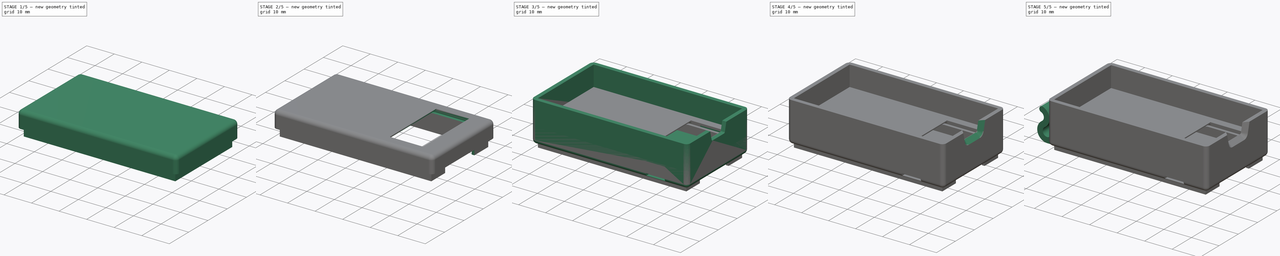
[diagram: build sequence overview — one tinted view per stage of 5, left to right]
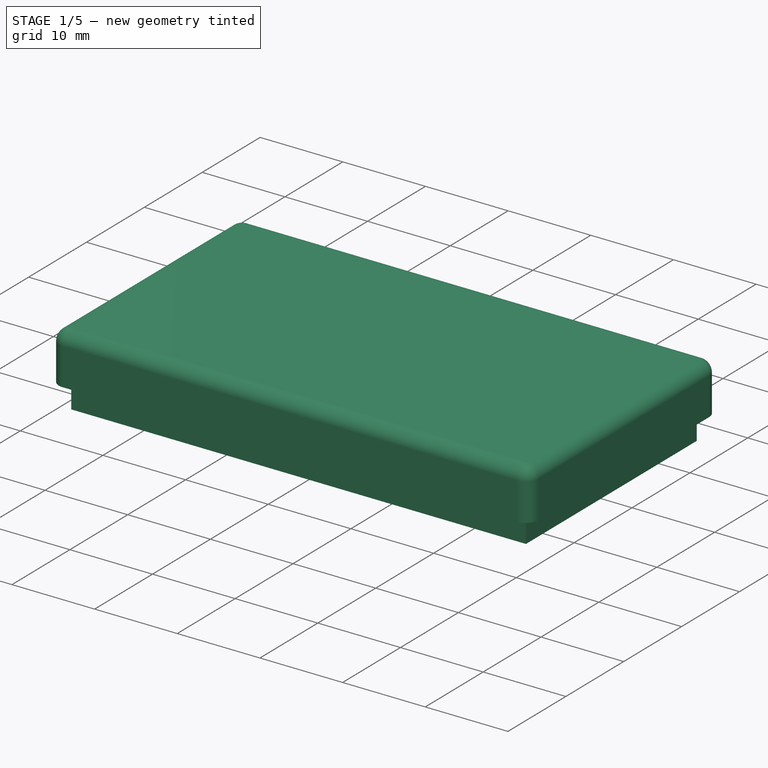
[diagram: stage 1 of 5 — iso view after this stage's code; geometry added in this stage tinted green]
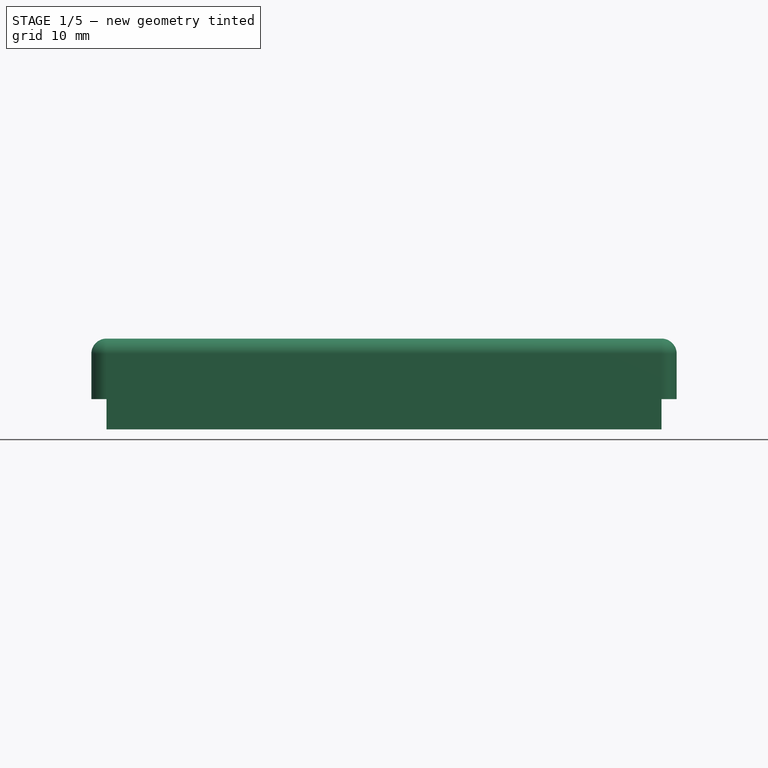
[diagram: stage 1 of 5 — front view after this stage's code; geometry added in this stage tinted green]
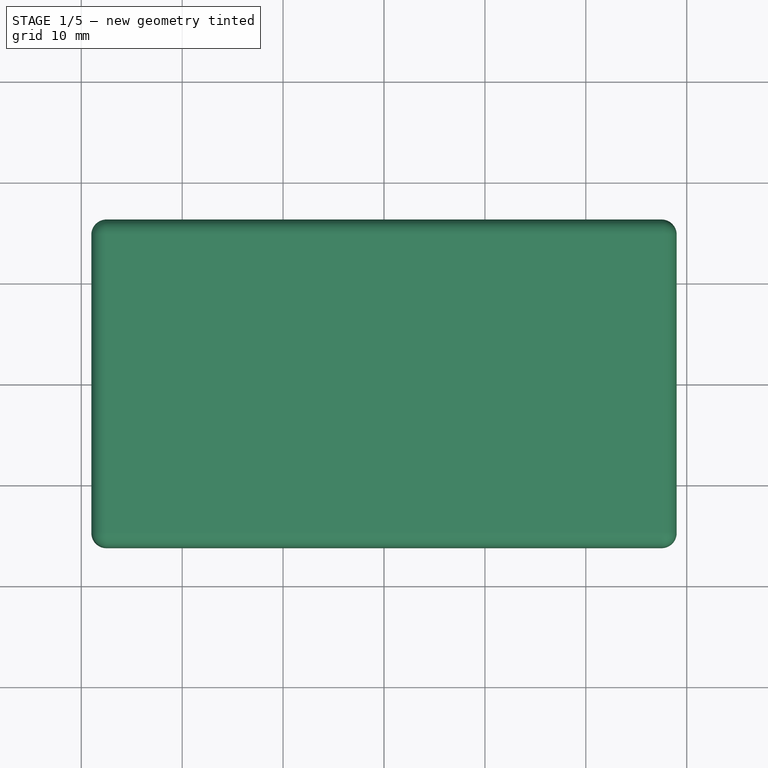
[diagram: stage 1 of 5 — top view after this stage's code; geometry added in this stage tinted green]
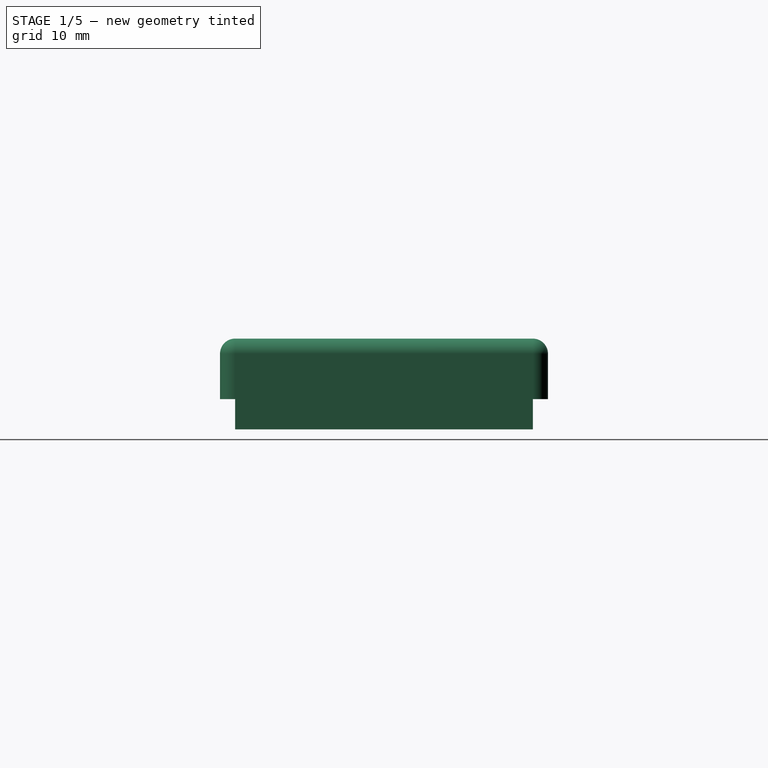
[diagram: stage 1 of 5 — right view after this stage's code; geometry added in this stage tinted green]
FCSTD DOCUMENT  (FreeCAD 0.19R14555 (Git shallow))
Label: wrist-case
License: All rights reserved
LicenseURL: http://en.wikipedia.org/wiki/All_rights_reserved
objects: Sketcher::SketchObject×16, PartDesign::Pocket×11, PartDesign::Pad×5, PartDesign::Chamfer×3, PartDesign::Body×3, PartDesign::Thickness×2, PartDesign::Fillet×2
note: 65 computed .brp shape members not serialized (recipe doc carries the construction recipe); baked Part::Feature solids carry a one-line shape summary decoded from their .brp

FEATURE [Sketcher::SketchObject] Sketch030
  FullyConstrained = true
  MapMode = 5
  Support = -> [XY_Plane003]
  sketch-geometry (4):
    g0: LineSegment StartX=-27.5 StartY=14.75 StartZ=0 EndX=27.5 EndY=14.75 EndZ=0
    g1: LineSegment StartX=27.5 StartY=14.75 StartZ=0 EndX=27.5 EndY=-14.75 EndZ=0
    g2: LineSegment StartX=27.5 StartY=-14.75 StartZ=0 EndX=-27.5 EndY=-14.75 EndZ=0
    g3: LineSegment StartX=-27.5 StartY=-14.75 StartZ=0 EndX=-27.5 EndY=14.75 EndZ=0
  constraints (10):
    c: Coincident(g0,g1)
    c: Coincident(g1,g2)
    c: Coincident(g2,g3)
    c: Coincident(g3,g0)
    c: Horizontal(g2)
    c: Vertical(g3)
    c: Symmetric(g0,g0,g-2)
    c: Symmetric(g0,g1,g-1)
    c: DistanceX(g0,g0) = 55  'width'
    c: DistanceY(g3,g3) = 29.5  'height'
FEATURE [PartDesign::Pad] Pad008  label="BodyPad001"
  AllowMultiFace = false
  Direction = (1,1,1)
  Length = 13.5
  Length2 = 100
  Profile = -> Sketch030
  Type = 0
FEATURE [PartDesign::Thickness] Thickness002
  Base = -> Pad008 [Face6]
  BaseFeature = -> Pad008
  Intersection = false
  Join = 0
  Mode = 0
  SupportTransform = false
  Value = 1.5
FEATURE [Sketcher::SketchObject] Sketch038
  FullyConstrained = true
  MapMode = 5
  Support = -> [XY_Plane004]
  expr: Constraints[8] = Sketch030.Constraints.width
  expr: Constraints[9] = Sketch030.Constraints.height
  sketch-geometry (4):
    g0: LineSegment StartX=-27.5 StartY=14.75 StartZ=0 EndX=27.5 EndY=14.75 EndZ=0
    g1: LineSegment StartX=27.5 StartY=14.75 StartZ=0 EndX=27.5 EndY=-14.75 EndZ=0
    g2: LineSegment StartX=27.5 StartY=-14.75 StartZ=0 EndX=-27.5 EndY=-14.75 EndZ=0
    g3: LineSegment StartX=-27.5 StartY=-14.75 StartZ=0 EndX=-27.5 EndY=14.75 EndZ=0
  constraints (10):
    c: Coincident(g0,g1)
    c: Coincident(g1,g2)
    c: Coincident(g2,g3)
    c: Coincident(g3,g0)
    c: Horizontal(g2)
    c: Vertical(g1)
    c: Symmetric(g0,g0,g-2)
    c: Symmetric(g0,g2,g-1)
    c: DistanceX(g0,g0) = 55
    c: DistanceY(g3,g3) = 29.5
FEATURE [PartDesign::Pad] Pad009
  AllowMultiFace = false
  Direction = (1,1,1)
  Length = 4.5
  Length2 = 10
  Profile = -> Sketch038
  Type = 0
  expr: Length = 6mm - Thickness002.Value
FEATURE [PartDesign::Thickness] Thickness003
  Base = -> Pad009 [Face5]
  BaseFeature = -> Pad009
  Intersection = false
  Join = 0
  Mode = 0
  SupportTransform = false
  Value = 1.5
  expr: Value = Thickness002.Value
FEATURE [Sketcher::SketchObject] Sketch039
  FullyConstrained = true
  MapMode = 5
  Support = -> [XY_Plane004]
  expr: Constraints[24] = Sketch030.Constraints.width
  expr: Constraints[25] = Sketch030.Constraints.height
  sketch-geometry (10):
    g0: LineSegment StartX=-27.5 StartY=14.75 StartZ=0 EndX=27.5 EndY=14.75 EndZ=0
    g1: LineSegment StartX=27.5 StartY=14.75 StartZ=0 EndX=27.5 EndY=-14.75 EndZ=0
    g2: LineSegment StartX=27.5 StartY=-14.75 StartZ=0 EndX=-27.5 EndY=-14.75 EndZ=0
    g3: LineSegment StartX=-27.5 StartY=-14.75 StartZ=0 EndX=-27.5 EndY=14.75 EndZ=0
    g4: LineSegment StartX=26.5 StartY=-13.75 StartZ=0 EndX=-26.5 EndY=-13.75 EndZ=0
    g5: LineSegment StartX=-26.5 StartY=-13.75 StartZ=0 EndX=-26.5 EndY=13.75 EndZ=0
    g6: LineSegment StartX=-26.5 StartY=13.75 StartZ=0 EndX=26.5 EndY=13.75 EndZ=0
    g7: LineSegment StartX=26.5 StartY=13.75 StartZ=0 EndX=26.5 EndY=-13.75 EndZ=0
    g8: LineSegment StartX=-26.5 StartY=13.75 StartZ=0 EndX=-26.5 EndY=14.75 EndZ=0
    g9: LineSegment StartX=-26.5 StartY=13.75 StartZ=0 EndX=-27.5 EndY=13.75 EndZ=0
  constraints (26):
    c: Coincident(g0,g1)
    c: Coincident(g1,g2)
    c: Coincident(g2,g3)
    c: Coincident(g3,g0)
    c: Horizontal(g2)
    c: Vertical(g1)
    c: Coincident(g4,g5)
    c: Coincident(g5,g6)
    c: Coincident(g6,g7)
    c: Coincident(g7,g4)
    c: Horizontal(g4)
    c: Vertical(g7)
    c: Coincident(g8,g5)
    c: PointOnObject(g8,g0)
    c: Vertical(g8)
    c: Coincident(g9,g5)
    c: PointOnObject(g9,g3)
    c: Horizontal(g9)
    c: Equal(g8,g9)
    c: DistanceY(g8,g8) = 1
    c: Symmetric(g0,g0,g-2)
    c: Symmetric(g0,g2,g-1)
    c: Symmetric(g4,g5,g-1)
    c: Symmetric(g6,g5,g-2)
    c: DistanceX(g0,g0) = 55
    c: DistanceY(g1,g1) = 29.5
FEATURE [PartDesign::Pad] Pad010
  AllowMultiFace = false
  BaseFeature = -> Thickness003
  Direction = (1,1,1)
  Length = 4.5
  Length2 = 3
  Profile = -> Sketch039
  Type = 4
  expr: Length = Pad009.Length
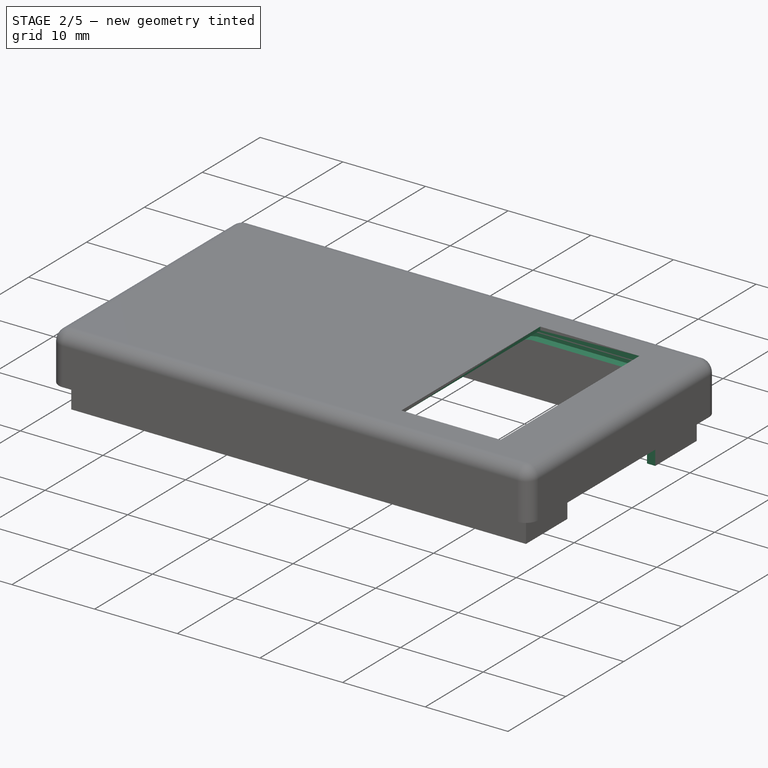
[diagram: stage 2 of 5 — iso view after this stage's code; geometry added in this stage tinted green]
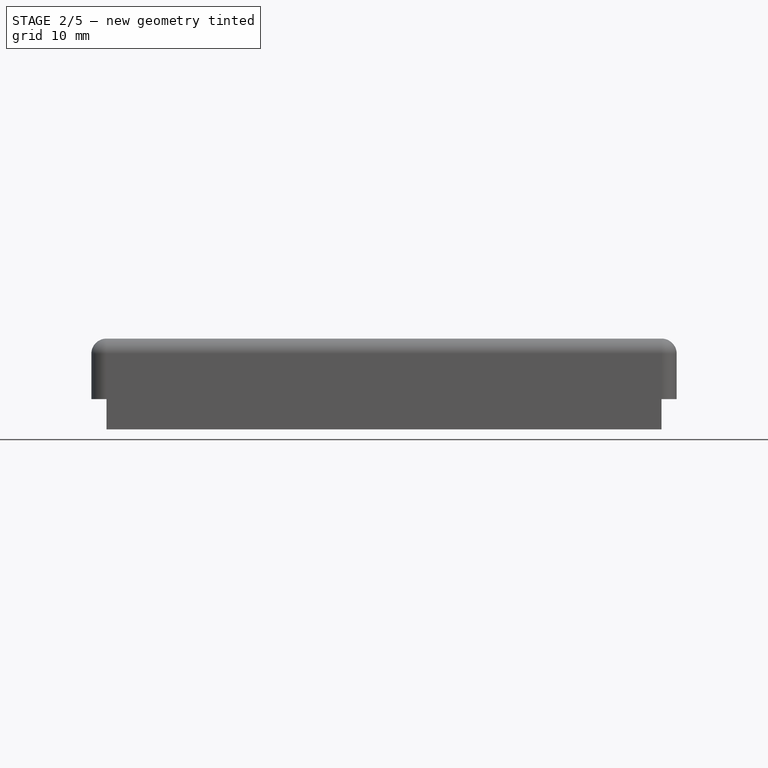
[diagram: stage 2 of 5 — front view after this stage's code; geometry added in this stage tinted green]
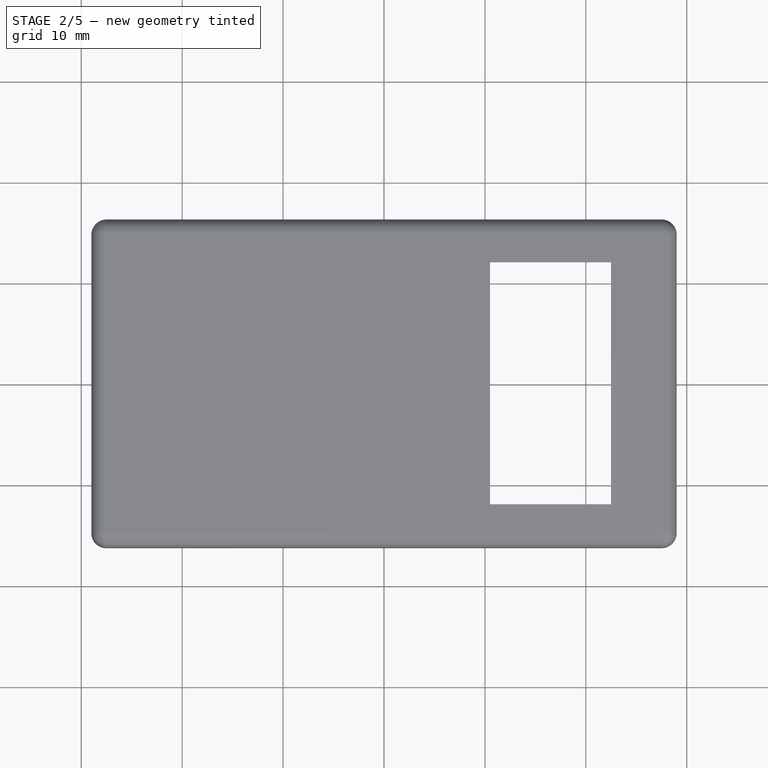
[diagram: stage 2 of 5 — top view after this stage's code; geometry added in this stage tinted green]
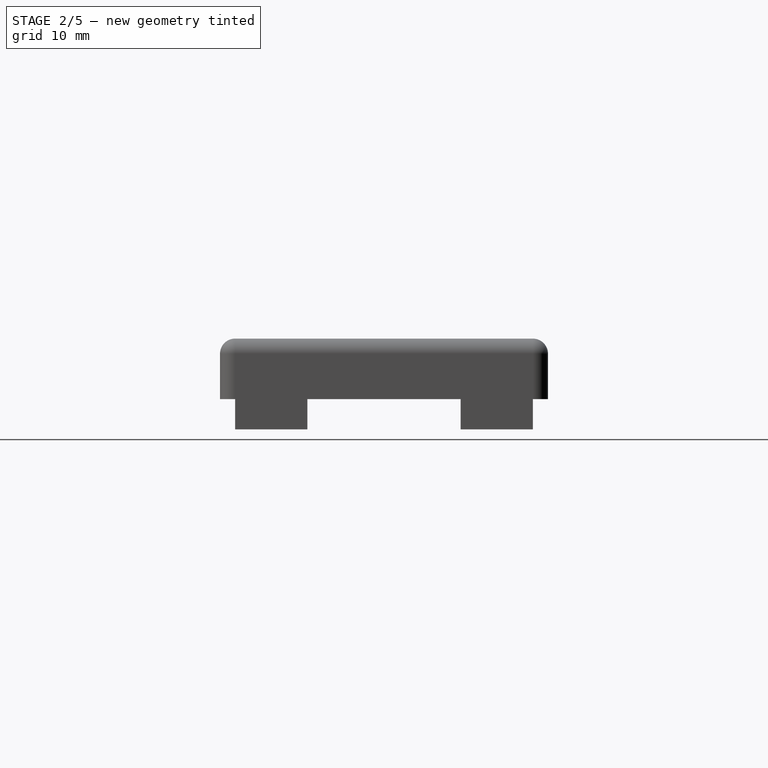
[diagram: stage 2 of 5 — right view after this stage's code; geometry added in this stage tinted green]
FEATURE [Sketcher::SketchObject] Sketch040
  FullyConstrained = false
  MapMode = 5
  Placement = pos=(0,0,0) rot=(0.57735,0.57735,0.57735;2.0944rad)
  Support = -> [YZ_Plane004]
  sketch-geometry (4):
    g0: LineSegment StartX=7.59001 StartY=-15.6776 StartZ=0 EndX=-7.59001 EndY=-15.6776 EndZ=0
    g1: LineSegment StartX=-7.59001 StartY=-15.6776 StartZ=0 EndX=-7.59001 EndY=0 EndZ=0
    g2: LineSegment StartX=-7.59001 StartY=0 StartZ=0 EndX=7.59001 EndY=0 EndZ=0
    g3: LineSegment StartX=7.59001 StartY=0 StartZ=0 EndX=7.59001 EndY=-15.6776 EndZ=0
  constraints (9):
    c: Coincident(g0,g1)
    c: Coincident(g1,g2)
    c: Coincident(g2,g3)
    c: Coincident(g3,g0)
    c: Horizontal(g0)
    c: Vertical(g1)
    c: Vertical(g3)
    c: PointOnObject(g2,g-1)
    c: Symmetric(g2,g1,g-2)
FEATURE [PartDesign::Pocket] Pocket024
  AllowMultiFace = false
  BaseFeature = -> Pad010
  Length = 5
  Length2 = 100
  Midplane = true
  Profile = -> Sketch040
  Reversed = true
  Type = 1
FEATURE [Sketcher::SketchObject] Sketch042  label="WindowSketch"
  FullyConstrained = true
  MapMode = 5
  Support = -> [XY_Plane004]
  expr: Constraints[10] = Sketch030.Constraints.width / 2 - 5mm
  sketch-geometry (4):
    g0: LineSegment StartX=22.5 StartY=12 StartZ=0 EndX=10.5 EndY=12 EndZ=0
    g1: LineSegment StartX=10.5 StartY=12 StartZ=0 EndX=10.5 EndY=-12 EndZ=0
    g2: LineSegment StartX=10.5 StartY=-12 StartZ=0 EndX=22.5 EndY=-12 EndZ=0
    g3: LineSegment StartX=22.5 StartY=-12 StartZ=0 EndX=22.5 EndY=12 EndZ=0
  constraints (11):
    c: Coincident(g0,g1)
    c: Coincident(g1,g2)
    c: Coincident(g2,g3)
    c: Coincident(g3,g0)
    c: Horizontal(g0)
    c: Horizontal(g2)
    c: Vertical(g1)
    c: Symmetric(g0,g2,g-1)
    c: DistanceX(g0,g0) = 12
    c: DistanceY(g3,g3) = 24
    c: DistanceX(g-1,g2) = 22.5
FEATURE [Sketcher::SketchObject] Sketch043
  AttachmentOffset = pos=(0,0,4.5) rot=(0,0,1;0rad)
  FullyConstrained = true
  MapMode = 5
  Placement = pos=(0,0,4.5) rot=(0,0,1;0rad)
  Support = -> [XY_Plane004]
  expr: Constraints[17] = Sketch030.Constraints.width / 2
  expr: .AttachmentOffset.Base.z = Pad009.Length
  sketch-geometry (8):
    g0: LineSegment StartX=3.75 StartY=13.5 StartZ=0 EndX=23.75 EndY=13.5 EndZ=0
    g1: LineSegment StartX=23.75 StartY=-13.5 StartZ=0 EndX=3.75 EndY=-13.5 EndZ=0
    g2: LineSegment StartX=23.75 StartY=-13.5 StartZ=0 EndX=23.75 EndY=13.5 EndZ=0
    g3: LineSegment StartX=-27.5 StartY=13.75 StartZ=0 EndX=-27.5 EndY=-13.75 EndZ=0
    g4: LineSegment StartX=2 StartY=13.75 StartZ=0 EndX=-27.5 EndY=13.75 EndZ=0
    g5: LineSegment StartX=2 StartY=-13.75 StartZ=0 EndX=-27.5 EndY=-13.75 EndZ=0
    g6: LineSegment StartX=2 StartY=13.75 StartZ=0 EndX=2 EndY=-13.75 EndZ=0
    g7: LineSegment StartX=3.75 StartY=-13.5 StartZ=0 EndX=3.75 EndY=13.5 EndZ=0
  constraints (21):
    c: Horizontal(g0)
    c: Symmetric(g0,g1,g-1)
    c: DistanceY(g1,g0) = 27
    c: PointOnObject(g2,g0)
    c: Vertical(g2)
    c: Coincident(g1,g2)
    c: Symmetric(g3,g3,g-1)
    c: Distance(g3) = 27.5
    c: Coincident(g4,g3)
    c: Coincident(g5,g3)
    c: Horizontal(g5)
    c: Symmetric(g0,g1,g-1)
    c: Symmetric(g5,g4,g-1)
    c: Coincident(g6,g4)
    c: Coincident(g6,g5)
    c: Coincident(g7,g1)
    c: Coincident(g7,g0)
    c: DistanceX(g3,g-1) = 27.5
    c: DistanceX(g5,g5) = 29.5
    c: DistanceX(g5,g1) = 1.75
    c: DistanceX(g1,g1) = 20
FEATURE [PartDesign::Pocket] Pocket026
  AllowMultiFace = false
  BaseFeature = -> Pocket024
  Length = 1.1
  Length2 = 100
  Profile = -> Sketch043
  Reversed = true
  Type = 0
  expr: Length = Thickness003.Value - 0.4mm
FEATURE [PartDesign::Body] Body003  label="Body"
  Group = -> [Sketch030,Pad008,Thickness002,Sketch031,Pocket018,Sketch034,Sketch035,Sketch036,Pocket022,Sketch037,Pocket023,Chamfer004,Fillet005,Pocket020,Pocket021,Chamfer005,Sketch044,Pocket027,Pad012,Sketch045,Sketch046,Pocket028,Fillet006]
  Origin = -> Origin003
  Tip = -> Fillet006
FEATURE [PartDesign::Pocket] Pocket029  label="Window"
  BaseFeature = -> Pocket026
  Length = 5
  Length2 = 100
  Profile = -> Sketch042
  Reversed = true
  Type = 1
FEATURE [PartDesign::Body] Body005  label="LidInsert"
  Group = -> [Sketch048,Pad014]
  Origin = -> Origin005
  Placement = pos=(0,0,18) rot=(1,0,0;3.14159rad)
  Tip = -> Pad014
  expr: .Placement.Base.z = <<BodyPad001>>.Length + Pad009.Length
FEATURE [Sketcher::SketchObject] Sketch051
  FullyConstrained = false
  MapMode = 5
  Placement = pos=(0,0,0) rot=(1,0,0;1.5708rad)
  Support = -> [XZ_Plane004]
  sketch-geometry (8):
    g0: LineSegment StartX=23 StartY=3.25 StartZ=0 EndX=23 EndY=4.25 EndZ=0
    g1: LineSegment StartX=23 StartY=4.25 StartZ=0 EndX=7.97822 EndY=4.25 EndZ=0
    g2: LineSegment StartX=0.497934 StartY=2.75 StartZ=0 EndX=-22 EndY=2.75 EndZ=0
    g3: LineSegment StartX=-22 StartY=2.75 StartZ=0 EndX=-22 EndY=1.75 EndZ=0
    g4: LineSegment StartX=-22 StartY=1.75 StartZ=0 EndX=0.696514 EndY=1.75 EndZ=0
    g5: LineSegment StartX=23 StartY=3.25 StartZ=0 EndX=8.1768 EndY=3.25 EndZ=0
    g6: LineSegment StartX=0.696514 StartY=1.75 StartZ=0 EndX=8.1768 EndY=3.25 EndZ=0
    g7: LineSegment StartX=7.97822 StartY=4.25 StartZ=0 EndX=0.497934 EndY=2.75 EndZ=0
  constraints (21):
    c: Vertical(g0)
    c: Coincident(g0,g1)
    c: Horizontal(g1)
    c: Horizontal(g2)
    c: Coincident(g2,g3)
    c: Vertical(g3)
    c: Coincident(g3,g4)
    c: Horizontal(g4)
    c: Coincident(g0,g5)
    c: Horizontal(g5)
    c: Equal(g3,g0)
    c: DistanceY(g0,g0) = 1
    c: Coincident(g6,g4)
    c: Coincident(g6,g5)
    c: Coincident(g7,g1)
    c: Coincident(g7,g2)
    c: Parallel(g7,g6)
    c: DistanceX(g3,g0) = 45  'length'
    c: DistanceX(g3,g-1) = 22
    c: DistanceY(g-1,g0) = 4.25
    c: DistanceY(g2,g1) = 1.5
FEATURE [PartDesign::Pocket] Pocket030
  BaseFeature = -> Pocket029
  Length = 29.5
  Length2 = 100
  Midplane = true
  Profile = -> Sketch051
  Type = 0
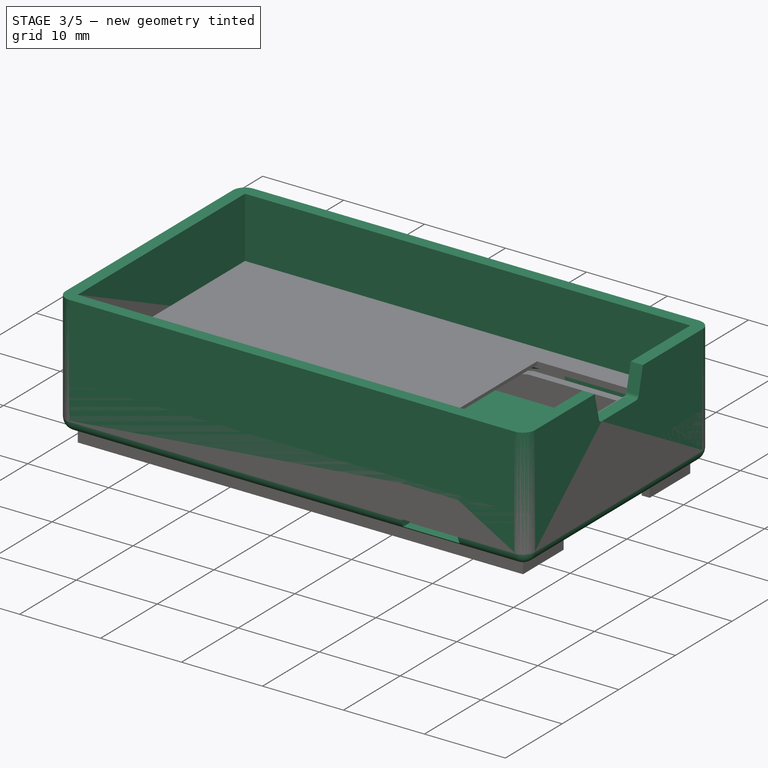
[diagram: stage 3 of 5 — iso view after this stage's code; geometry added in this stage tinted green]
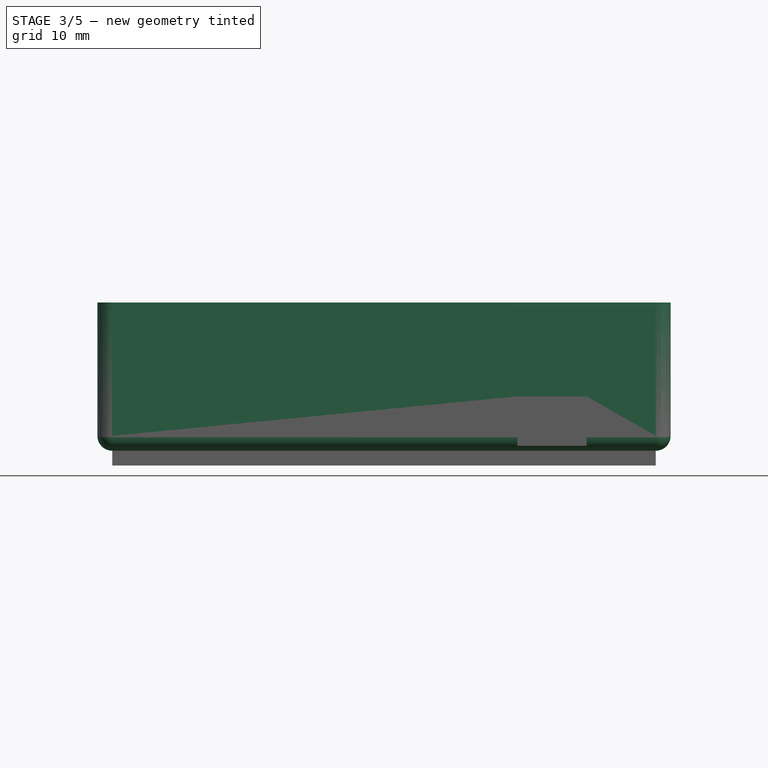
[diagram: stage 3 of 5 — front view after this stage's code; geometry added in this stage tinted green]
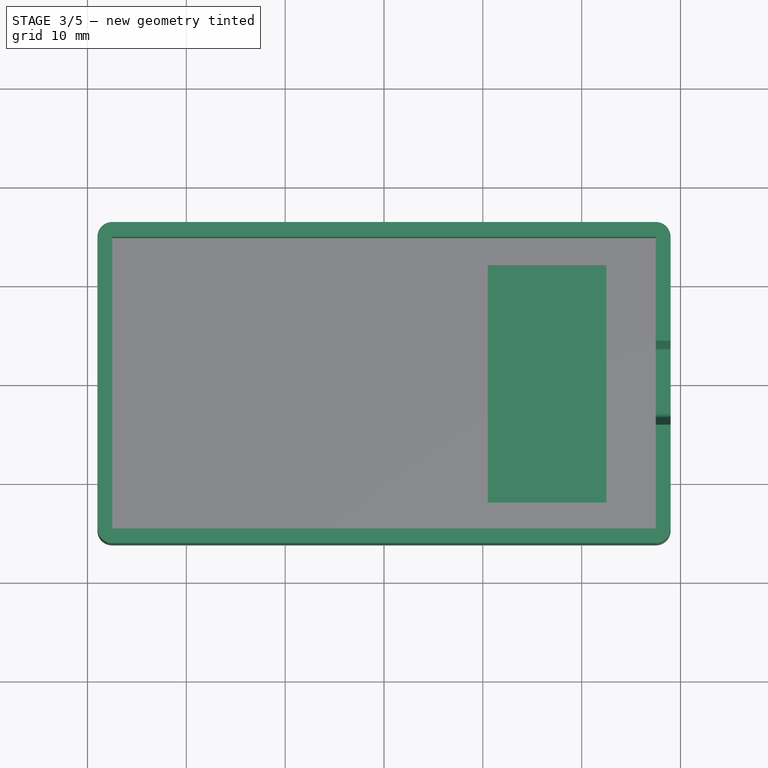
[diagram: stage 3 of 5 — top view after this stage's code; geometry added in this stage tinted green]
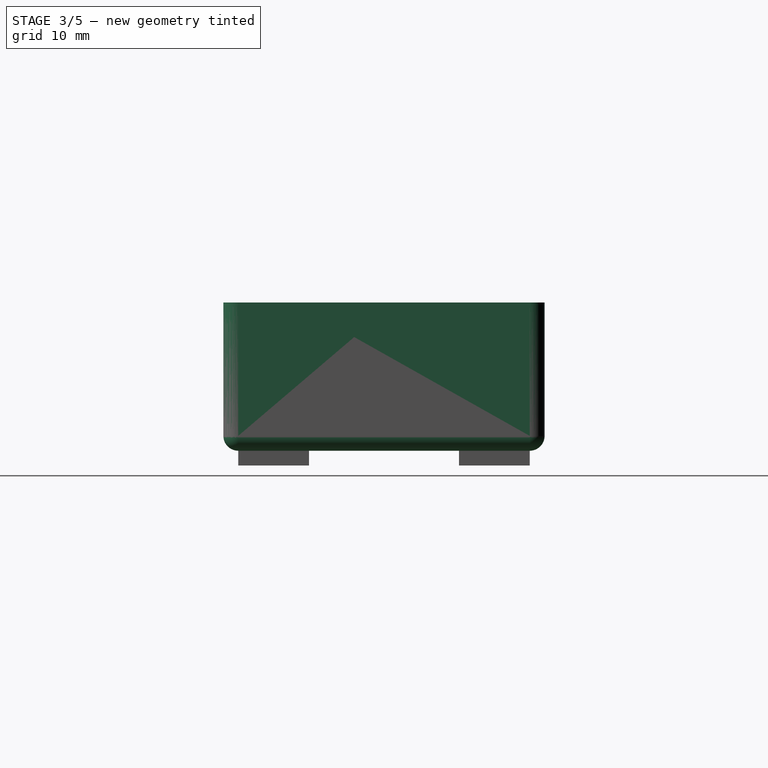
[diagram: stage 3 of 5 — right view after this stage's code; geometry added in this stage tinted green]
FEATURE [Sketcher::SketchObject] Sketch031  label="USBSketch001"
  FullyConstrained = true
  MapMode = 5
  Placement = pos=(0,0,0) rot=(0.57735,0.57735,0.57735;2.0944rad)
  Support = -> [YZ_Plane003]
  expr: Constraints[13] = <<BodyPad001>>.Length
  sketch-geometry (6):
    g0: LineSegment StartX=-4.25 StartY=13.5 StartZ=0 EndX=4.25 EndY=13.5 EndZ=0
    g1: LineSegment StartX=4.25 StartY=13.5 StartZ=0 EndX=3.5 EndY=10.383 EndZ=0
    g2: LineSegment StartX=-3.5 StartY=10.383 StartZ=0 EndX=-4.25 EndY=13.5 EndZ=0
    g3: LineSegment StartX=3.01387 StartY=10 StartZ=0 EndX=-3.01387 EndY=10 EndZ=0
    g4: ArcOfCircle CenterX=3.01387 CenterY=10.5 CenterZ=0 NormalX=0 NormalY=0 NormalZ=1 AngleXU=0 Radius=0.5 StartAngle=4.71239 EndAngle=6.04706
    g5: ArcOfCircle CenterX=-3.01387 CenterY=10.5 CenterZ=0 NormalX=0 NormalY=0 NormalZ=1 AngleXU=0 Radius=0.5 StartAngle=3.37772 EndAngle=4.71239
  constraints (14):
    c: Tangent(g3,g4) = 1.5708
    c: Tangent(g1,g4) = 1.5708
    c: Tangent(g3,g5) = 1.5708
    c: Tangent(g2,g5) = 1.5708
    c: Equal(g4,g5)
    c: Radius(g4) = 0.5
    c: DistanceX(g2,g1) = 8.5
    c: DistanceX(g2,g1) = 7
    c: Symmetric(g0,g0,g-2)
    c: Symmetric(g3,g3,g-2)
    c: DistanceY(g-1,g3) = 10
    c: Coincident(g0,g1)
    c: Coincident(g2,g0)
    c: DistanceY(g-1,g0) = 13.5
FEATURE [PartDesign::Pocket] Pocket018  label="USBPocket001"
  AllowMultiFace = false
  BaseFeature = -> Thickness002
  Length = 5
  Length2 = 100
  Profile = -> Sketch031
  Reversed = true
  Type = 1
FEATURE [Sketcher::SketchObject] Sketch034
  FullyConstrained = false
  MapMode = 5
  Support = -> [XY_Plane003]
  sketch-geometry (4):
    g0: Circle CenterX=-10 CenterY=0 CenterZ=0 NormalX=0 NormalY=0 NormalZ=1 AngleXU=0 Radius=4.75
    g1: Circle CenterX=10 CenterY=0 CenterZ=0 NormalX=0 NormalY=0 NormalZ=1 AngleXU=0 Radius=4.75
    g2: Circle CenterX=-10 CenterY=0 CenterZ=0 NormalX=0 NormalY=0 NormalZ=1 AngleXU=0 Radius=2.75
    g3: Circle CenterX=10 CenterY=0 CenterZ=0 NormalX=0 NormalY=0 NormalZ=1 AngleXU=0 Radius=2.75
  constraints (9):
    c: PointOnObject(g0,g-1)
    c: Equal(g1,g0)
    c: Symmetric(g0,g1,g-2)
    c: Radius(g1) = 4.75  'outerRadius'
    c: DistanceX(g0,g1) = 20  'SnapDistance'
    c: Coincident(g2,g0)
    c: Coincident(g3,g1)
    c: Equal(g3,g2)
    c: Radius(g3) = 2.75  'innerRadius'
FEATURE [Sketcher::SketchObject] Sketch035
  FullyConstrained = false
  MapMode = 5
  Support = -> [XY_Plane003]
  expr: Constraints[29] = Sketch034.Constraints.SnapDistance
  sketch-geometry (22):
    g0: LineSegment StartX=11.9103 StartY=-2.62931 StartZ=0 EndX=13.0909 EndY=1.00431 EndZ=0
    g1: LineSegment StartX=13.0909 StartY=1.00431 StartZ=0 EndX=10 EndY=3.25 EndZ=0
    g2: LineSegment StartX=10 StartY=3.25 StartZ=0 EndX=6.90907 EndY=1.00431 EndZ=0
    g3: LineSegment StartX=6.90907 StartY=1.00431 StartZ=0 EndX=8.0897 EndY=-2.62931 EndZ=0
    g4: LineSegment StartX=8.0897 StartY=-2.62931 StartZ=0 EndX=11.9103 EndY=-2.62931 EndZ=0
    g5: Circle CenterX=10 CenterY=0 CenterZ=0 NormalX=0 NormalY=0 NormalZ=1 AngleXU=0 Radius=3.25
    g6: LineSegment StartX=-8.0897 StartY=-2.62931 StartZ=0 EndX=-6.90907 EndY=1.00431 EndZ=0
    g7: LineSegment StartX=-6.90907 StartY=1.00431 StartZ=0 EndX=-10 EndY=3.25 EndZ=0
    g8: LineSegment StartX=-10 StartY=3.25 StartZ=0 EndX=-13.0909 EndY=1.00431 EndZ=0
    g9: LineSegment StartX=-13.0909 StartY=1.00431 StartZ=0 EndX=-11.9103 EndY=-2.62931 EndZ=0
    g10: LineSegment StartX=-11.9103 StartY=-2.62931 StartZ=0 EndX=-8.0897 EndY=-2.62931 EndZ=0
    g11: Circle CenterX=-10 CenterY=0 CenterZ=0 NormalX=0 NormalY=0 NormalZ=1 AngleXU=0 Radius=3.25
    g12: Circle CenterX=10 CenterY=3.25 CenterZ=0 NormalX=0 NormalY=0 NormalZ=1 AngleXU=0 Radius=0.85
    g13: Circle CenterX=13.0909 CenterY=1.00431 CenterZ=0 NormalX=0 NormalY=0 NormalZ=1 AngleXU=0 Radius=0.85
    g14: Circle CenterX=11.9103 CenterY=-2.62931 CenterZ=0 NormalX=0 NormalY=0 NormalZ=1 AngleXU=0 Radius=0.85
    g15: Circle CenterX=8.0897 CenterY=-2.62931 CenterZ=0 NormalX=0 NormalY=0 NormalZ=1 AngleXU=0 Radius=0.85
    g16: Circle CenterX=6.90907 CenterY=1.00431 CenterZ=0 NormalX=0 NormalY=0 NormalZ=1 AngleXU=0 Radius=0.85
    g17: Circle CenterX=-10 CenterY=3.25 CenterZ=0 NormalX=0 NormalY=0 NormalZ=1 AngleXU=0 Radius=0.85
    g18: Circle CenterX=-6.90907 CenterY=1.00431 CenterZ=0 NormalX=0 NormalY=0 NormalZ=1 AngleXU=0 Radius=0.85
    g19: Circle CenterX=-8.0897 CenterY=-2.62931 CenterZ=0 NormalX=0 NormalY=0 NormalZ=1 AngleXU=0 Radius=0.85
    g20: Circle CenterX=-11.9103 CenterY=-2.62931 CenterZ=0 NormalX=0 NormalY=0 NormalZ=1 AngleXU=0 Radius=0.85
    g21: Circle CenterX=-13.0909 CenterY=1.00431 CenterZ=0 NormalX=0 NormalY=0 NormalZ=1 AngleXU=0 Radius=0.85
  constraints (49):
    c: Coincident(g0,g1)
    c: Coincident(g1,g2)
    c: Coincident(g2,g3)
    c: Coincident(g3,g4)
    c: Coincident(g4,g0)
    c: Equal(g0, g1-g4) x4
    c: PointOnObject(g0,g5)
    c: PointOnObject(g1,g5)
    c: PointOnObject(g2,g5)
    c: PointOnObject(g3,g5)
    c: PointOnObject(g4,g5)
    c: PointOnObject(g5,g-1)
    c: Coincident(g6,g7)
    c: Coincident(g7,g8)
    c: Coincident(g8,g9)
    c: Coincident(g9,g10)
    c: Coincident(g10,g6)
    c: Equal(g6, g7-g10) x4
    c: PointOnObject(g6,g11)
    c: PointOnObject(g7,g11)
    c: PointOnObject(g8,g11)
    c: PointOnObject(g9,g11)
    c: PointOnObject(g10,g11)
    c: DistanceX(g11,g5) = 20
    c: Horizontal(g10)
    c: Horizontal(g4)
    c: Equal(g5,g11)
    c: Symmetric(g11,g5,g-2)
    c: Coincident(g12,g1)
    c: Coincident(g13,g0)
    c: Coincident(g14,g0)
    c: Coincident(g15,g3)
    c: Coincident(g16,g2)
    c: Coincident(g17,g7)
    c: Coincident(g18,g6)
    c: Coincident(g19,g6)
    c: Coincident(g20,g9)
    c: Coincident(g21,g8)
    c: Equal(g17,g21)
    c: Equal(g21,g20)
    c: Equal(g20,g19)
    c: Equal(g19,g18)
    c: Equal(g12,g16)
    c: Equal(g16,g15)
    c: Equal(g15,g14)
    c: Equal(g14,g13)
    c: Equal(g12,g17)
    c: Radius(g5) = 3.25  'MajorRadius'
    c: Radius(g12) = 0.85  'minorRadius'
FEATURE [Sketcher::SketchObject] Sketch036
  FullyConstrained = false
  MapMode = 5
  Placement = pos=(0,0,0) rot=(1,0,0;1.5708rad)
  Support = -> [XZ_Plane003]
  sketch-geometry (5):
    g0: LineSegment StartX=13.5 StartY=4 StartZ=0 EndX=20.5 EndY=4 EndZ=0
    g1: LineSegment StartX=20.5 StartY=4 StartZ=0 EndX=20.5 EndY=-1 EndZ=0
    g2: LineSegment StartX=13.5 StartY=-1 StartZ=0 EndX=13.5 EndY=4 EndZ=0
    g3: LineSegment StartX=17 StartY=4 StartZ=0 EndX=17 EndY=-1 EndZ=0
    g4: LineSegment StartX=13.5 StartY=-1 StartZ=0 EndX=20.5 EndY=-1 EndZ=0
  constraints (15):
    c: Coincident(g0,g1)
    c: Coincident(g2,g0)
    c: Vertical(g1)
    c: Vertical(g2)
    c: DistanceX(g0,g0) = 7
    c: Horizontal(g0)
    c: PointOnObject(g3,g0)
    c: Symmetric(g0,g0,g3)
    c: DistanceX(g-1,g3) = 17
    c: Coincident(g4,g2)
    c: Coincident(g4,g1)
    c: Horizontal(g4)
    c: PointOnObject(g3,g4)
    c: DistanceY(g2,g-1) = 1
    c: Distance(g1) = 5
FEATURE [PartDesign::Pocket] Pocket022
  AllowMultiFace = false
  BaseFeature = -> Pocket018
  Length = 5
  Length2 = 100
  Profile = -> Sketch036
  Reversed = true
  Type = 1
FEATURE [Sketcher::SketchObject] Sketch037
  AttachmentOffset = pos=(0,0,-7) rot=(0,0,1;0rad)
  FullyConstrained = false
  MapMode = 5
  Placement = pos=(0,7,1.6e-15) rot=(1,0,0;1.5708rad)
  Support = -> [XZ_Plane003]
  sketch-geometry (14):
    g0: LineSegment StartX=-7 StartY=4 StartZ=0 EndX=0 EndY=4 EndZ=0
    g1: LineSegment StartX=0 StartY=4 StartZ=0 EndX=0 EndY=-1 EndZ=0
    g2: LineSegment StartX=0 StartY=-1 StartZ=0 EndX=-7 EndY=-1 EndZ=0
    g3: LineSegment StartX=-7 StartY=-1 StartZ=0 EndX=-7 EndY=4 EndZ=0
    g4: LineSegment StartX=5 StartY=4 StartZ=0 EndX=12 EndY=4 EndZ=0
    g5: LineSegment StartX=12 StartY=4 StartZ=0 EndX=12 EndY=-1 EndZ=0
    g6: LineSegment StartX=12 StartY=-1 StartZ=0 EndX=5 EndY=-1 EndZ=0
    g7: LineSegment StartX=5 StartY=-1 StartZ=0 EndX=5 EndY=4 EndZ=0
    g8: LineSegment StartX=-19 StartY=4 StartZ=0 EndX=-12 EndY=4 EndZ=0
    g9: LineSegment StartX=-12 StartY=4 StartZ=0 EndX=-12 EndY=-1 EndZ=0
    g10: LineSegment StartX=-12 StartY=-1 StartZ=0 EndX=-19 EndY=-1 EndZ=0
    g11: LineSegment StartX=-19 StartY=-1 StartZ=0 EndX=-19 EndY=4 EndZ=0
    g12: LineSegment StartX=-12 StartY=4 StartZ=0 EndX=-7 EndY=4 EndZ=0
    g13: LineSegment StartX=0 StartY=4 StartZ=0 EndX=5 EndY=4 EndZ=0
  constraints (40):
    c: Coincident(g0,g1)
    c: Coincident(g3,g0)
    c: Horizontal(g2)
    c: Vertical(g1)
    c: Vertical(g3)
    c: Coincident(g4,g5)
    c: Coincident(g7,g4)
    c: Horizontal(g4)
    c: Horizontal(g6)
    c: Vertical(g5)
    c: Vertical(g7)
    c: Coincident(g8,g9)
    c: Coincident(g11,g8)
    c: Horizontal(g8)
    c: Horizontal(g10)
    c: Vertical(g9)
    c: Vertical(g11)
    c: Equal(g0,g8)
    c: Equal(g8,g4)
    c: Horizontal(g4,g0)
    c: Horizontal(g0,g8)
    c: Horizontal(g10,g2)
    c: Horizontal(g2,g6)
    c: Coincident(g12,g8)
    c: Coincident(g12,g0)
    c: Coincident(g13,g0)
    c: Coincident(g13,g4)
    c: Equal(g13,g12)
    c: DistanceX(g0,g0) = 7
    c: DistanceX(g12,g12) = 5
    c: Coincident(g6,g5)
    c: Coincident(g6,g7)
    c: Coincident(g2,g1)
    c: Coincident(g2,g3)
    c: Coincident(g9,g10)
    c: Coincident(g10,g11)
    c: DistanceY(g1,g-1) = 1
    c: DistanceY(g5,g5) = 5
    c: PointOnObject(g0,g-2)
    c: Horizontal(g0)
FEATURE [PartDesign::Pocket] Pocket023
  AllowMultiFace = false
  BaseFeature = -> Pocket022
  Length = 5
  Length2 = 100
  Profile = -> Sketch037
  Type = 1
FEATURE [Sketcher::SketchObject] Sketch048
  FullyConstrained = true
  MapMode = 5
  Support = -> [XY_Plane005]
  expr: .Constraints.Width = Sketch030.Constraints.width / 2
  expr: .Constraints.Height = Sketch030.Constraints.height - 1mm
  expr: Constraints[10] = Sketch051.Constraints.length
  sketch-geometry (4):
    g0: LineSegment StartX=27.5 StartY=-14.25 StartZ=0 EndX=-17.5 EndY=-14.25 EndZ=0
    g1: LineSegment StartX=-17.5 StartY=-14.25 StartZ=0 EndX=-17.5 EndY=14.25 EndZ=0
    g2: LineSegment StartX=-17.5 StartY=14.25 StartZ=0 EndX=27.5 EndY=14.25 EndZ=0
    g3: LineSegment StartX=27.5 StartY=14.25 StartZ=0 EndX=27.5 EndY=-14.25 EndZ=0
  constraints (11):
    c: Coincident(g0,g1)
    c: Coincident(g1,g2)
    c: Coincident(g2,g3)
    c: Coincident(g3,g0)
    c: Horizontal(g0)
    c: Horizontal(g2)
    c: Vertical(g1)
    c: Symmetric(g2,g0,g-1)
    c: DistanceY(g3,g3) = 28.5  'Height'
    c: DistanceX(g-1,g2) = 27.5  'Width'
    c: DistanceX(g0,g0) = 45
FEATURE [PartDesign::Pad] Pad014
  Direction = (1,1,1)
  Length = 0.4
  Length2 = 100
  Profile = -> Sketch048
  Type = 0
FEATURE [PartDesign::Chamfer] Chamfer006
  Angle = 45
  Base = -> Pocket030 [Edge108,Edge91,Edge93,Edge95,Edge106,Edge105]
  BaseFeature = -> Pocket030
  ChamferType = 0
  FlipDirection = false
  Size = 0.75
  Size2 = 1
  SupportTransform = false
FEATURE [PartDesign::Body] Body004  label="Lid"
  Group = -> [Sketch038,Pad009,Thickness003,Sketch039,Pad010,Sketch040,Pocket024,Sketch042,Sketch043,Pocket026,Pocket029,Sketch051,Pocket030,Chamfer006]
  Origin = -> Origin004
  Placement = pos=(0,0,13.5) rot=(0,0,1;0rad)
  Tip = -> Chamfer006
  expr: .Placement.Base.z = <<BodyPad001>>.Length
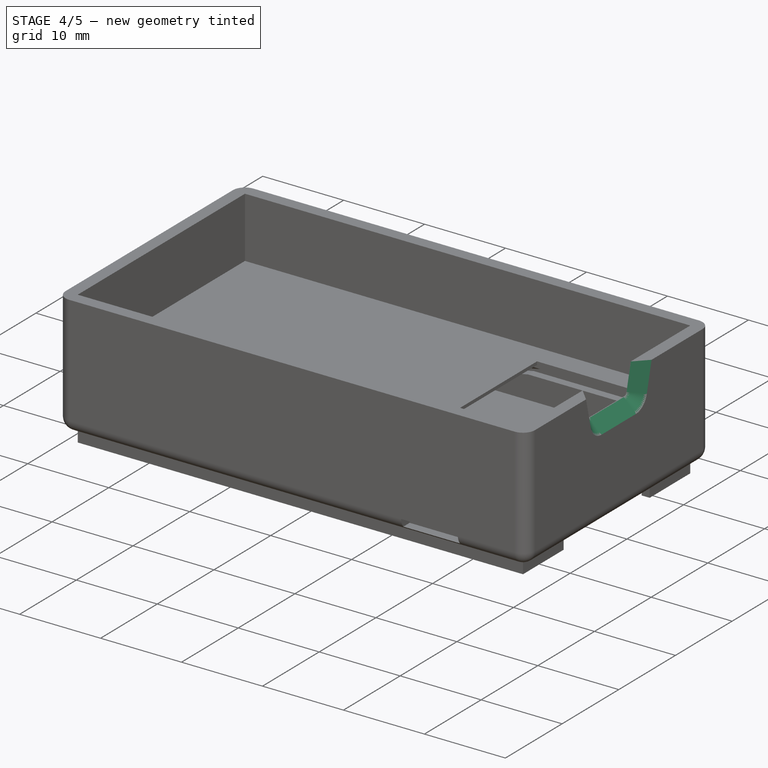
[diagram: stage 4 of 5 — iso view after this stage's code; geometry added in this stage tinted green]
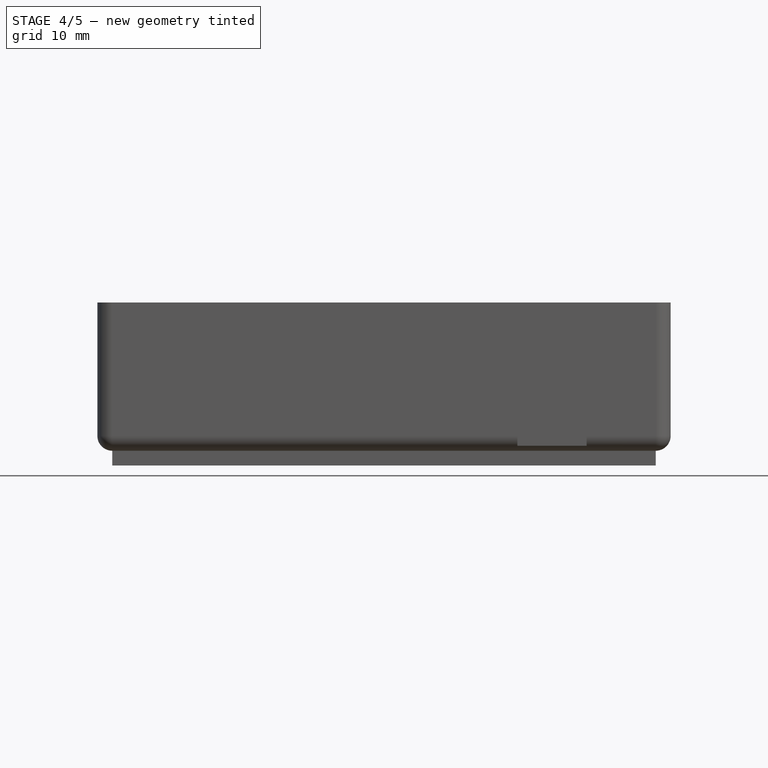
[diagram: stage 4 of 5 — front view after this stage's code; geometry added in this stage tinted green]
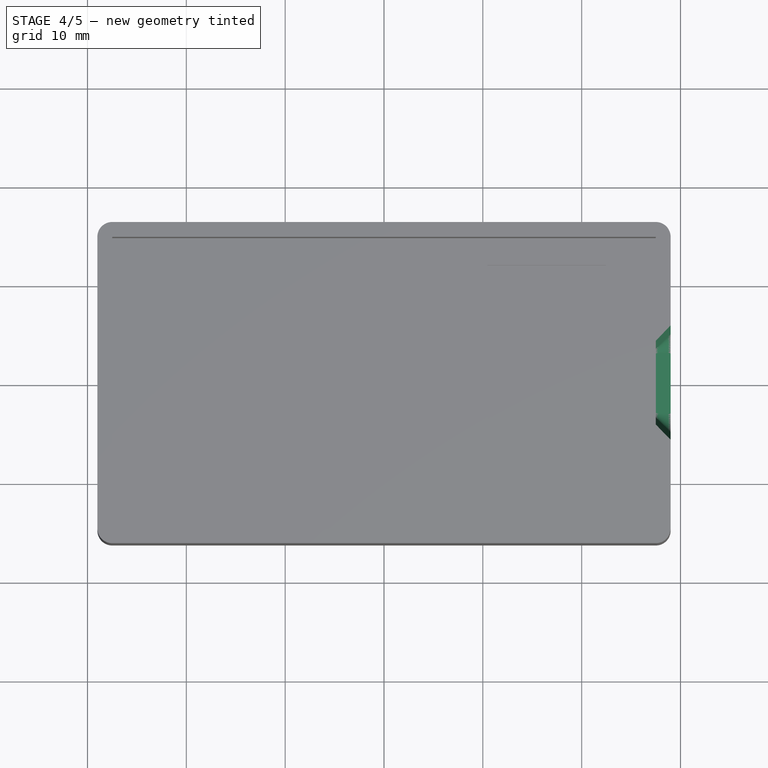
[diagram: stage 4 of 5 — top view after this stage's code; geometry added in this stage tinted green]
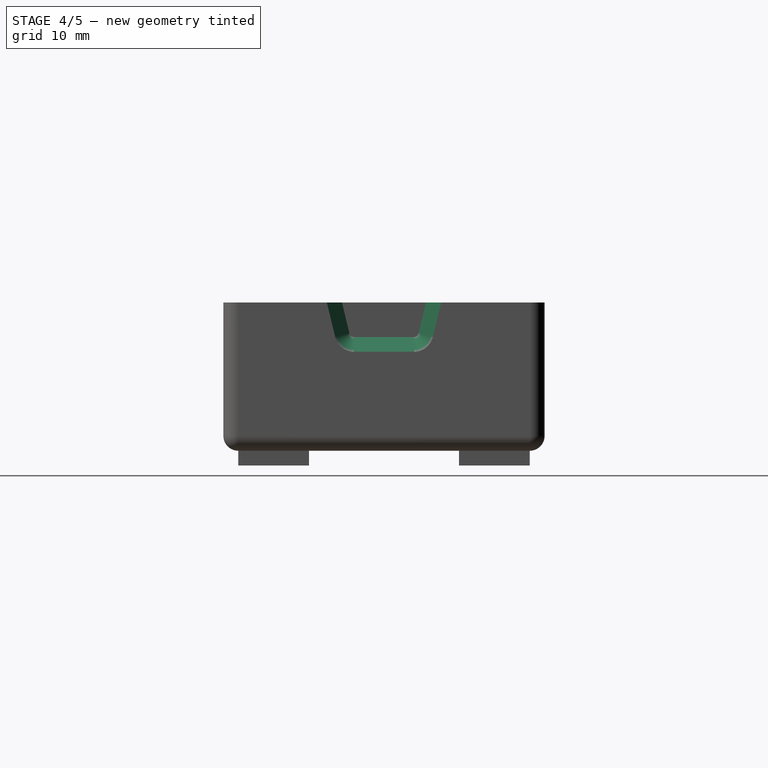
[diagram: stage 4 of 5 — right view after this stage's code; geometry added in this stage tinted green]
FEATURE [PartDesign::Chamfer] Chamfer004
  Angle = 45
  Base = -> Pocket023 [Edge121]
  BaseFeature = -> Pocket023
  ChamferType = 0
  FlipDirection = false
  Size = 1.49
  Size2 = 1
  SupportTransform = false
  expr: Size = Thickness002.Value - 0.01mm
FEATURE [PartDesign::Fillet] Fillet005
  Base = -> Chamfer004 [Edge55,Edge74,Edge38,Edge42,Edge46,Edge50,Edge24]
  BaseFeature = -> Chamfer004
  Radius = 0.99
  SupportTransform = false
FEATURE [PartDesign::Chamfer] Chamfer005
  Angle = 45
  Base = -> Fillet005 [Edge66,Edge74,Edge71,Edge61]
  BaseFeature = -> Fillet005
  ChamferType = 0
  FlipDirection = false
  Size = 0.99
  Size2 = 1
  SupportTransform = false
FEATURE [Sketcher::SketchObject] Sketch044
  FullyConstrained = true
  MapMode = 5
  Placement = pos=(0,0,0) rot=(1,0,0;1.5708rad)
  Support = -> [XZ_Plane003]
  expr: Constraints[3] = Thickness002.Value
  expr: Constraints[4] = Sketch030.Constraints.width / 2
  expr: Constraints[14] = Thickness002.Value
  expr: Constraints[17] = Thickness002.Value
  sketch-geometry (7):
    g0: Circle CenterX=27.5 CenterY=0 CenterZ=0 NormalX=0 NormalY=0 NormalZ=1 AngleXU=0 Radius=1.5
    g1: GeomPoint X=29 Y=0 Z=0
    g2: LineSegment StartX=24.5 StartY=3 StartZ=0 EndX=30.5 EndY=3 EndZ=0
    g3: LineSegment StartX=30.5 StartY=3 StartZ=0 EndX=30.5 EndY=-3 EndZ=0
    g4: LineSegment StartX=30.5 StartY=-3 StartZ=0 EndX=24.5 EndY=-3 EndZ=0
    g5: LineSegment StartX=24.5 StartY=-3 StartZ=0 EndX=24.5 EndY=3 EndZ=0
    g6: GeomPoint X=27.5 Y=-1.5 Z=0
  constraints (18):
    c: PointOnObject(g0,g-1)
    c: PointOnObject(g1,g0)
    c: PointOnObject(g1,g-1)
    c: Radius(g0) = 1.5
    c: DistanceX(g-1,g0) = 27.5
    c: Coincident(g2,g3)
    c: Coincident(g3,g4)
    c: Coincident(g4,g5)
    c: Coincident(g5,g2)
    c: Horizontal(g2)
    c: Horizontal(g4)
    c: Vertical(g3)
    c: Symmetric(g2,g4,g-1)
    c: Equal(g3,g2)
    c: DistanceX(g1,g2) = 1.5
    c: PointOnObject(g6,g0)
    c: Vertical(g6,g0)
    c: DistanceY(g3,g6) = 1.5
FEATURE [PartDesign::Pocket] Pocket027
  AllowMultiFace = false
  BaseFeature = -> Chamfer005
  Length = 22
  Length2 = 100
  Midplane = true
  Profile = -> Sketch044
  Type = 0
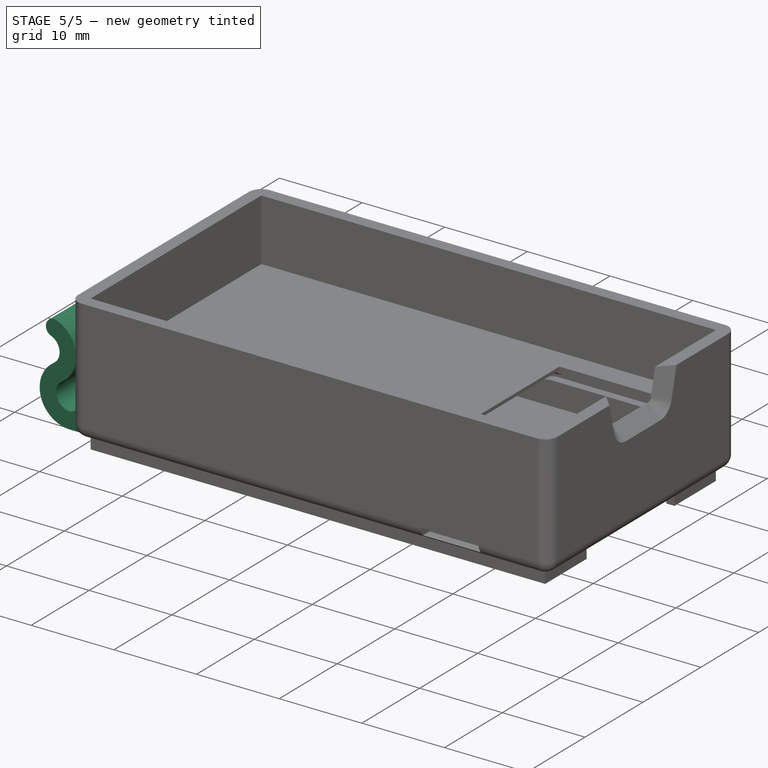
[diagram: stage 5 of 5 — iso view after this stage's code; geometry added in this stage tinted green]
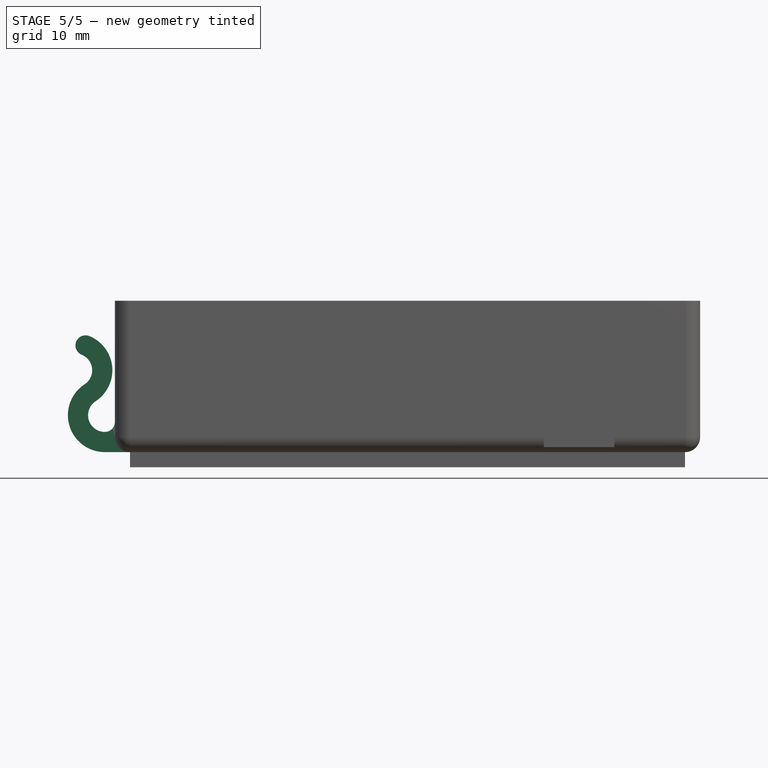
[diagram: stage 5 of 5 — front view after this stage's code; geometry added in this stage tinted green]
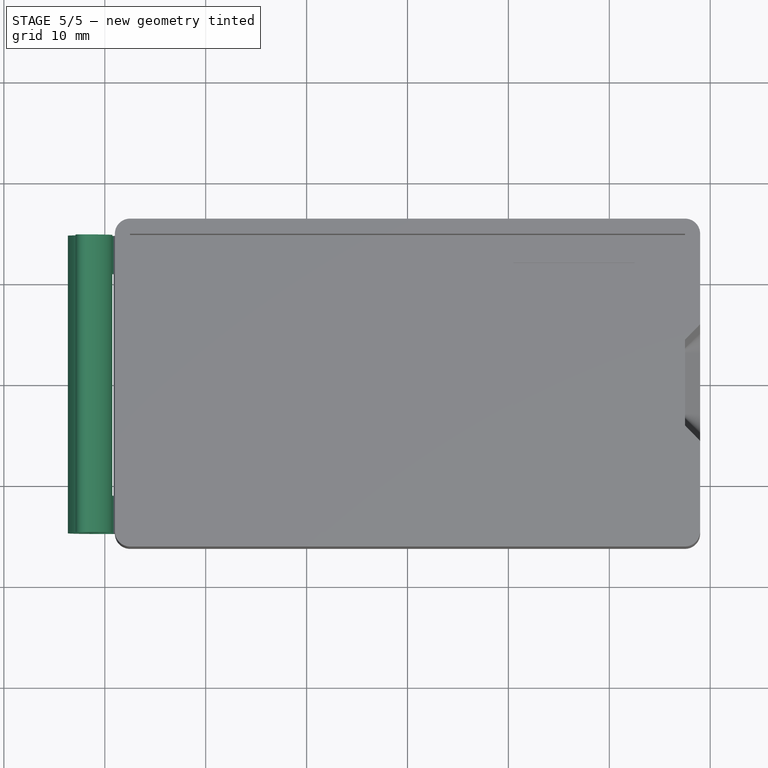
[diagram: stage 5 of 5 — top view after this stage's code; geometry added in this stage tinted green]
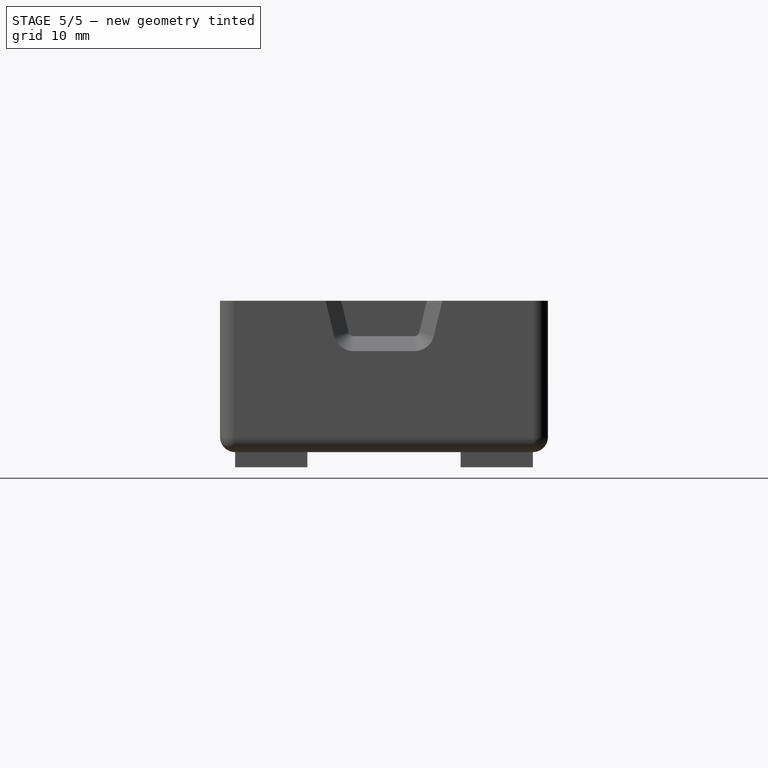
[diagram: stage 5 of 5 — right view after this stage's code; geometry added in this stage tinted green]
FEATURE [PartDesign::Pocket] Pocket020  label="RingHole"
  AllowMultiFace = false
  BaseFeature = -> Fillet005
  Length = 1.1
  Length2 = 100
  Profile = -> Sketch034
  Type = 0
  expr: Length = Thickness002.Value - 0.4mm
FEATURE [PartDesign::Pocket] Pocket021  label="RingHoleHoles"
  AllowMultiFace = false
  BaseFeature = -> Pocket020
  Length = 5
  Length2 = 100
  Profile = -> Sketch035
  Type = 1
FEATURE [Sketcher::SketchObject] Sketch045
  FullyConstrained = true
  MapMode = 5
  Placement = pos=(0,0,0) rot=(1,0,0;1.5708rad)
  Support = -> [XZ_Plane003]
  sketch-geometry (11):
    g0: ArcOfCircle CenterX=-32.9087 CenterY=6.60998 CenterZ=0 NormalX=0 NormalY=0 NormalZ=1 AngleXU=0 Radius=1.65869 StartAngle=5.29118 EndAngle=7.46837
    g1: ArcOfCircle CenterX=-32.9087 CenterY=6.60998 CenterZ=0 NormalX=0 NormalY=0 NormalZ=1 AngleXU=0 Radius=3.65869 StartAngle=5.29118 EndAngle=7.46837
    g2: ArcOfCircle CenterX=-30 CenterY=2.15869 CenterZ=0 NormalX=0 NormalY=0 NormalZ=1 AngleXU=0 Radius=1.65869 StartAngle=2.14959 EndAngle=4.71239
    g3: ArcOfCircle CenterX=-30 CenterY=2.15869 CenterZ=0 NormalX=0 NormalY=0 NormalZ=1 AngleXU=0 Radius=3.65869 StartAngle=2.14959 EndAngle=4.71239
    g4: LineSegment StartX=-27.5 StartY=1.5 StartZ=0 EndX=-27.5 EndY=-1.5 EndZ=0
    g5: LineSegment StartX=-27.5 StartY=-1.5 StartZ=0 EndX=-30 EndY=-1.5 EndZ=0
    g6: ArcOfCircle CenterX=-31.9087 CenterY=9.07343 CenterZ=0 NormalX=0 NormalY=0 NormalZ=1 AngleXU=0 Radius=1 StartAngle=1.18518 EndAngle=4.32678
    g7: LineSegment StartX=-32.9087 StartY=9.07343 StartZ=0 EndX=-32.9087 EndY=4.37804 EndZ=0
    g8: ArcOfCircle CenterX=-30 CenterY=1.5 CenterZ=0 NormalX=0 NormalY=0 NormalZ=1 AngleXU=0 Radius=1 StartAngle=4.71239 EndAngle=6.28319
    g9: LineSegment StartX=-29 StartY=1.5 StartZ=0 EndX=-27.5 EndY=1.5 EndZ=0
    g10: GeomPoint X=-29.25 Y=6.60998 Z=0
  constraints (33):
    c: Coincident(g1,g0)
    c: Coincident(g3,g2)
    c: Tangent(g3,g0) = 1.5708
    c: Tangent(g2,g1) = 1.5708
    c: Vertical(g3,g2)
    c: DistanceY(g3,g2) = 2
    c: DistanceX(g2) = -30
    c: Vertical(g4)
    c: Coincident(g4,g5)
    c: Coincident(g5,g3)
    c: Horizontal(g5)
    c: Equal(g3,g1)
    c: Tangent(g6,g1) = -1.5708
    c: Tangent(g6,g0) = 1.5708
    c: PointOnObject(g7,g6)
    c: PointOnObject(g7,g3)
    c: Vertical(g7)
    c: Tangent(g7,g6)
    c: PointOnObject(g0,g7)
    c: Coincident(g8,g2)
    c: Coincident(g9,g8)
    c: Coincident(g9,g4)
    c: Vertical(g8,g2)
    c: Horizontal(g8,g8)
    c: Vertical(g2,g3)
    c: Radius(g8) = 1
    c: PointOnObject(g10,g1)
    c: Horizontal(g0,g10)
    c: DistanceX(g10,g8) = 0.25
    c: DistanceY(g-1,g1) = 10
    c: DistanceX(g5,g5) = 2.5
    c: Horizontal(g9)
    c: DistanceY(g4,g-1) = 1.5
FEATURE [PartDesign::Pad] Pad012
  BaseFeature = -> Pocket027
  Direction = (1,1,1)
  Length = 29.5
  Length2 = 100
  Midplane = true
  Profile = -> Sketch045
  Type = 0
FEATURE [Sketcher::SketchObject] Sketch046
  FullyConstrained = true
  MapMode = 5
  Support = -> [XY_Plane003]
  sketch-geometry (4):
    g0: LineSegment StartX=-29 StartY=11 StartZ=0 EndX=-30.5 EndY=11 EndZ=0
    g1: LineSegment StartX=-30.5 StartY=11 StartZ=0 EndX=-30.5 EndY=-11 EndZ=0
    g2: LineSegment StartX=-30.5 StartY=-11 StartZ=0 EndX=-29 EndY=-11 EndZ=0
    g3: LineSegment StartX=-29 StartY=-11 StartZ=0 EndX=-29 EndY=11 EndZ=0
  constraints (11):
    c: Coincident(g0,g1)
    c: Coincident(g1,g2)
    c: Coincident(g2,g3)
    c: Coincident(g3,g0)
    c: Horizontal(g0)
    c: Horizontal(g2)
    c: Vertical(g3)
    c: Symmetric(g0,g1,g-1)
    c: Distance(g0) = 1.5
    c: Distance(g1) = 22
    c: DistanceX(g0,g-1) = 29
FEATURE [PartDesign::Pocket] Pocket028
  BaseFeature = -> Pad012
  Length = 2
  Length2 = 1
  Midplane = true
  Profile = -> Sketch046
  Type = 4
FEATURE [PartDesign::Fillet] Fillet006
  Base = -> Pocket028 [Edge234,Edge123,Edge171]
  BaseFeature = -> Pocket028
  Radius = 1
  SupportTransform = false
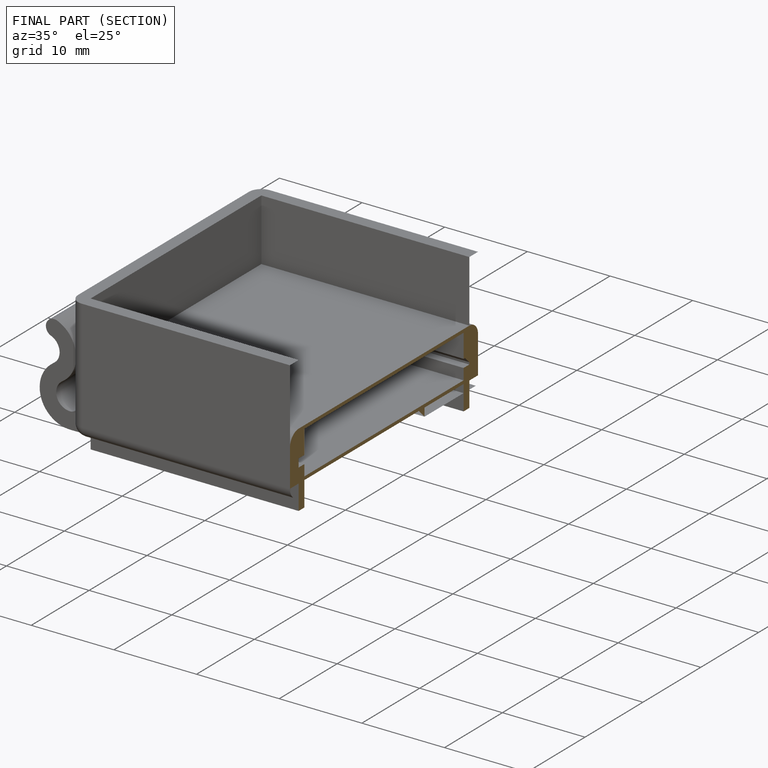
[diagram: finished part — half-section view (interior)]
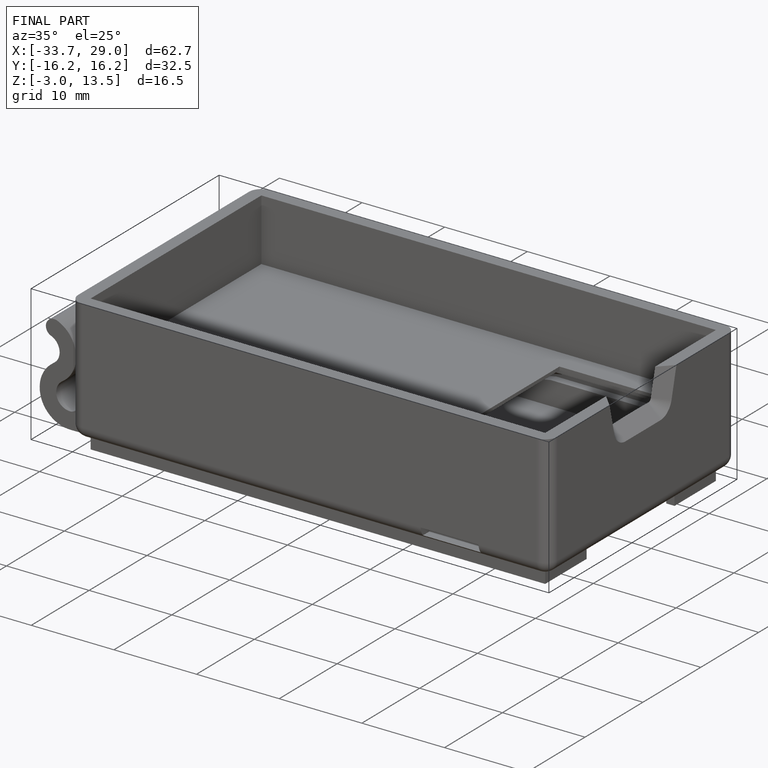
[diagram: finished part — iso view with bounding-box wireframe]
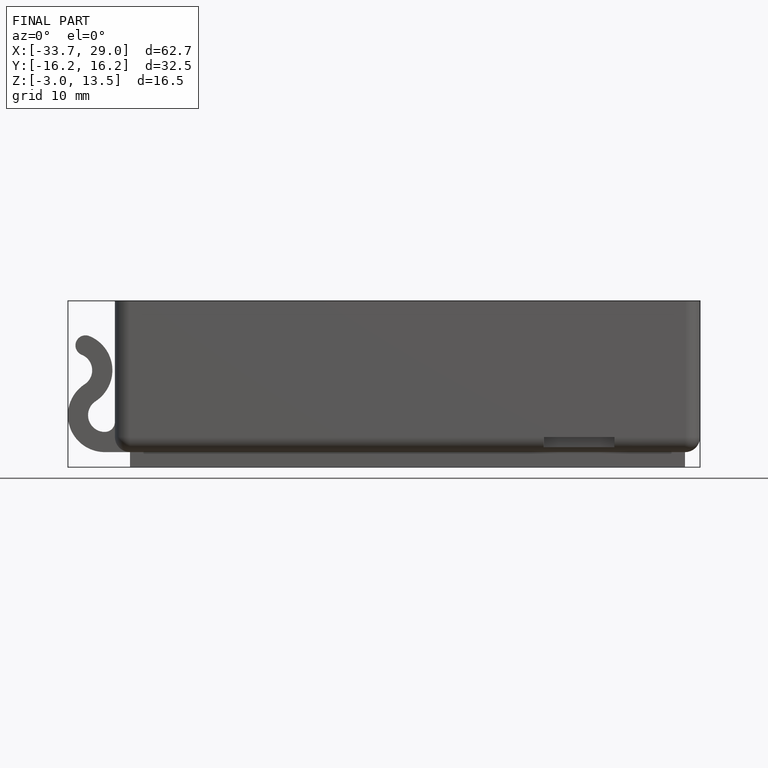
[diagram: finished part — front view with bounding-box wireframe]
